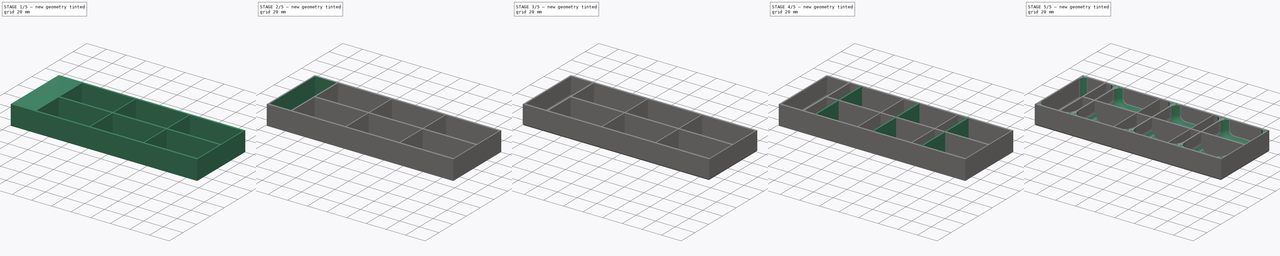
[diagram: build sequence overview — one tinted view per stage of 5, left to right]
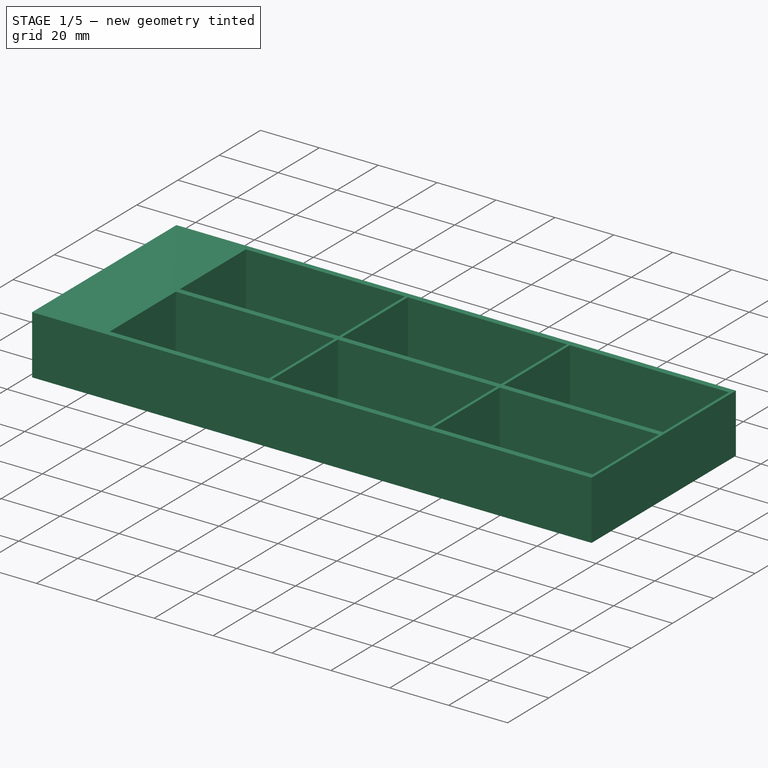
[diagram: stage 1 of 5 — iso view after this stage's code; geometry added in this stage tinted green]
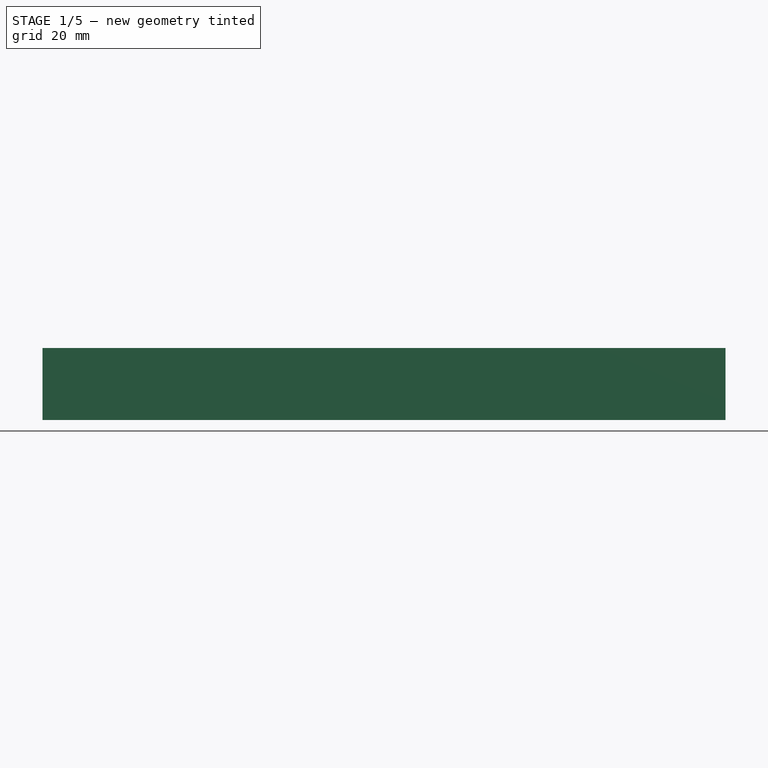
[diagram: stage 1 of 5 — front view after this stage's code; geometry added in this stage tinted green]
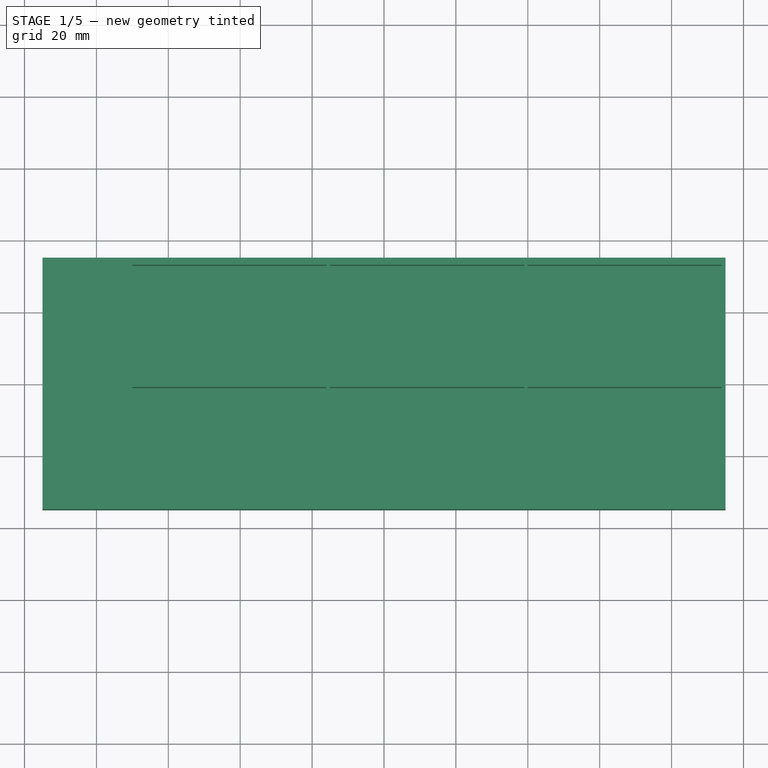
[diagram: stage 1 of 5 — top view after this stage's code; geometry added in this stage tinted green]
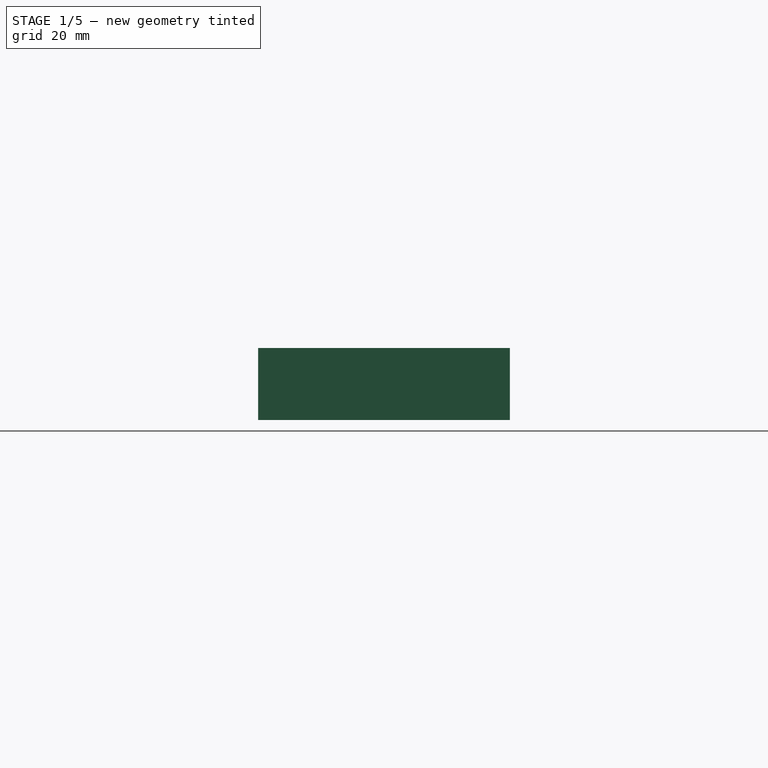
[diagram: stage 1 of 5 — right view after this stage's code; geometry added in this stage tinted green]
FCSTD DOCUMENT  (FreeCAD 0.20R29603 (Git))
Label: GuildMaster
License: All rights reserved
LicenseURL: http://en.wikipedia.org/wiki/All_rights_reserved
objects: Sketcher::SketchObject×6, PartDesign::Fillet×6, PartDesign::Pad×4, PartDesign::Plane×3, PartDesign::Pocket×2, PartDesign::Mirrored×2, PartDesign::LinearPattern×2, PartDesign::MultiTransform×2, PartDesign::Body×2, PartDesign::Thickness×1, App::Part×1
note: 43 computed .brp shape members not serialized (recipe doc carries the construction recipe); baked Part::Feature solids carry a one-line shape summary decoded from their .brp

FEATURE [Sketcher::SketchObject] Sketch005
  FullyConstrained = true
  MapMode = 5
  Support = -> [XY_Plane003]
  sketch-geometry (4):
    g0: LineSegment StartX=-95 StartY=35 StartZ=0 EndX=95 EndY=35 EndZ=0
    g1: LineSegment StartX=95 StartY=35 StartZ=0 EndX=95 EndY=-35 EndZ=0
    g2: LineSegment StartX=95 StartY=-35 StartZ=0 EndX=-95 EndY=-35 EndZ=0
    g3: LineSegment StartX=-95 StartY=-35 StartZ=0 EndX=-95 EndY=35 EndZ=0
  constraints (10):
    c: Coincident(g0,g1)
    c: Coincident(g1,g2)
    c: Coincident(g2,g3)
    c: Coincident(g3,g0)
    c: Horizontal(g2)
    c: Vertical(g1)
    c: DistanceX(g0,g0) = 190
    c: DistanceY(g3,g3) = 70
    c: Symmetric(g0,g0,g-2)
    c: Symmetric(g0,g2,g-1)
FEATURE [PartDesign::Pad] Pad005
  Direction = (0,0,1)
  Length = 20
  Length2 = 10
  Profile = -> Sketch005
  ReferenceAxis = -> Sketch005 [N_Axis]
  Type = 0
FEATURE [PartDesign::Plane] DatumPlane003
  Length = 213.065
  MapMode = 5
  Placement = pos=(0,0,20) rot=(0,0,1;0rad)
  ResizeMode = 0
  Support = -> [Pad005]
  Width = 93.0651
FEATURE [Sketcher::SketchObject] Sketch006
  AttachmentOffset = pos=(67,17,0) rot=(0,0,1;0rad)
  FullyConstrained = true
  MapMode = 5
  Placement = pos=(67,17,20) rot=(0,0,1;0rad)
  Support = -> [DatumPlane003]
  sketch-geometry (4):
    g0: LineSegment StartX=-27 StartY=16 StartZ=0 EndX=27 EndY=16 EndZ=0
    g1: LineSegment StartX=27 StartY=16 StartZ=0 EndX=27 EndY=-16 EndZ=0
    g2: LineSegment StartX=27 StartY=-16 StartZ=0 EndX=-27 EndY=-16 EndZ=0
    g3: LineSegment StartX=-27 StartY=-16 StartZ=0 EndX=-27 EndY=16 EndZ=0
  constraints (10):
    c: Coincident(g0,g1)
    c: Coincident(g1,g2)
    c: Coincident(g2,g3)
    c: Coincident(g3,g0)
    c: Horizontal(g2)
    c: Vertical(g1)
    c: DistanceX(g0,g0) = 54
    c: DistanceY(g3,g3) = 32
    c: Symmetric(g0,g0,g-2)
    c: Symmetric(g0,g2,g-1)
FEATURE [PartDesign::Pocket] Pocket
  BaseFeature = -> Pad005
  Direction = (0,0,-1)
  Length = 18.5
  Length2 = 5
  Profile = -> Sketch006
  ReferenceAxis = -> Sketch006 [N_Axis]
  Type = 0
FEATURE [PartDesign::Mirrored] Mirrored
  MirrorPlane = -> XZ_Plane003
FEATURE [PartDesign::LinearPattern] LinearPattern
  Direction = -> Sketch006 [H_Axis]
  Length = 110
  Occurrences = 3
  Reversed = true
FEATURE [PartDesign::MultiTransform] MultiTransform
  BaseFeature = -> Pocket
  Originals = -> [Pocket]
  Transformations = -> [Mirrored,LinearPattern]
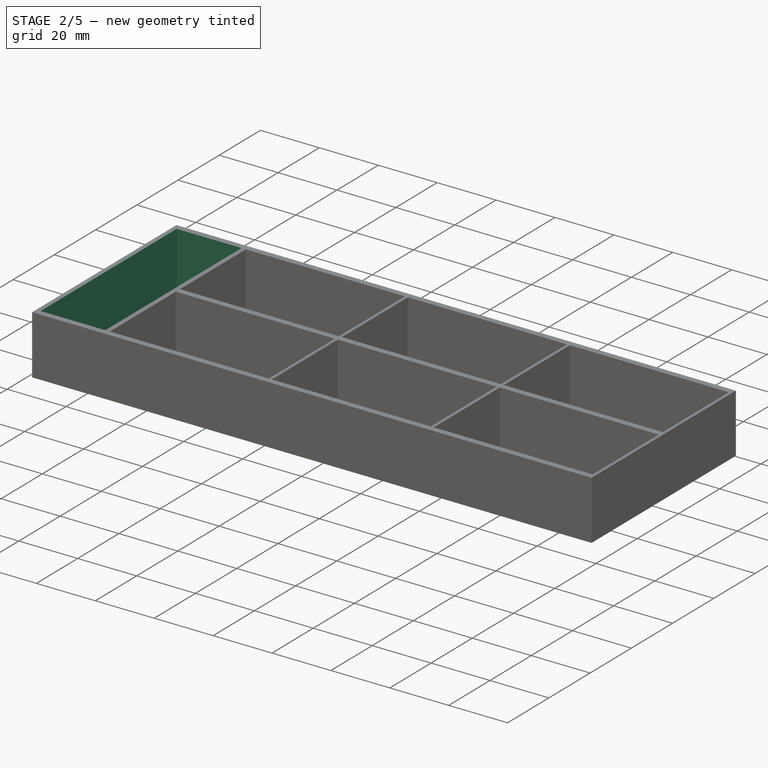
[diagram: stage 2 of 5 — iso view after this stage's code; geometry added in this stage tinted green]
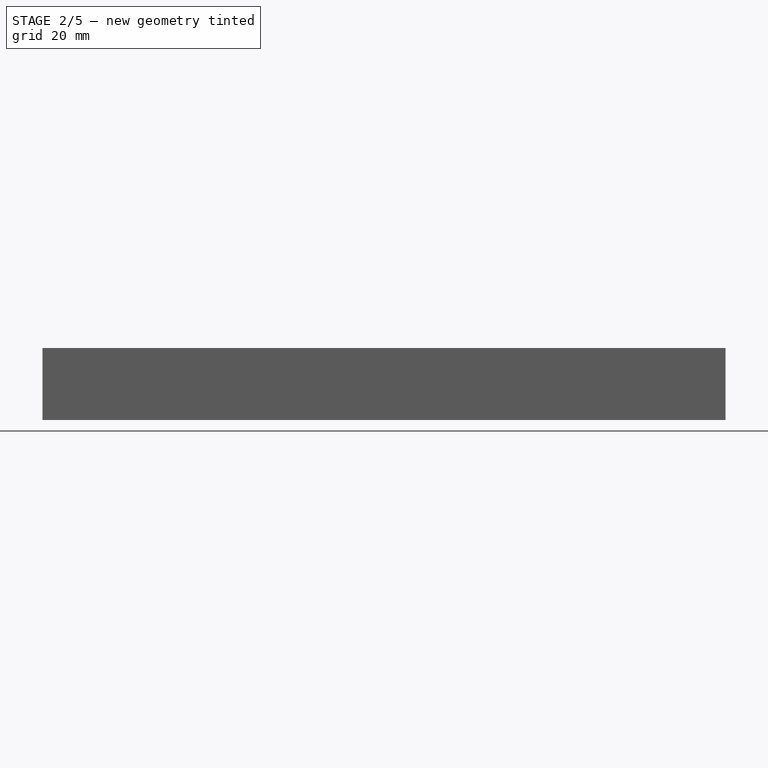
[diagram: stage 2 of 5 — front view after this stage's code; geometry added in this stage tinted green]
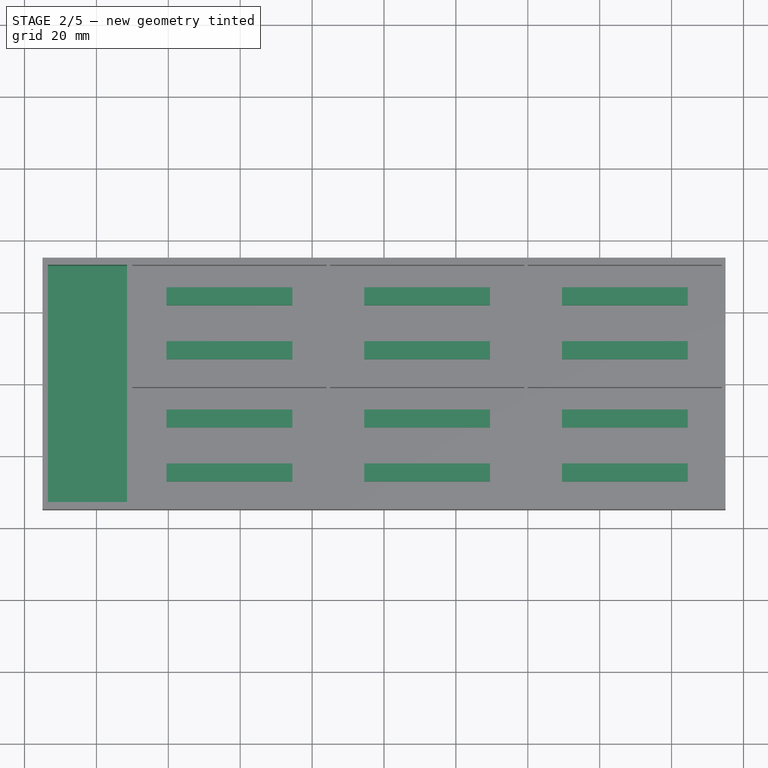
[diagram: stage 2 of 5 — top view after this stage's code; geometry added in this stage tinted green]
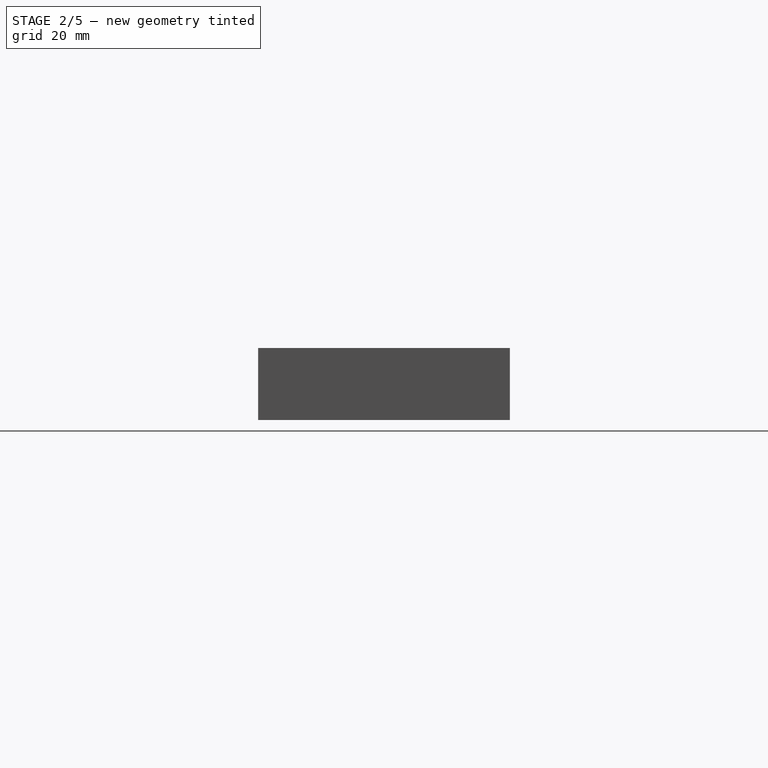
[diagram: stage 2 of 5 — right view after this stage's code; geometry added in this stage tinted green]
FEATURE [Sketcher::SketchObject] Sketch007
  AttachmentOffset = pos=(-82.5,0,0) rot=(0,0,1;0rad)
  FullyConstrained = true
  MapMode = 5
  Placement = pos=(-82.5,0,20) rot=(0,0,1;0rad)
  Support = -> [DatumPlane003]
  sketch-geometry (4):
    g0: LineSegment StartX=-11 StartY=33 StartZ=0 EndX=11 EndY=33 EndZ=0
    g1: LineSegment StartX=11 StartY=33 StartZ=0 EndX=11 EndY=-33 EndZ=0
    g2: LineSegment StartX=11 StartY=-33 StartZ=0 EndX=-11 EndY=-33 EndZ=0
    g3: LineSegment StartX=-11 StartY=-33 StartZ=0 EndX=-11 EndY=33 EndZ=0
  constraints (10):
    c: Coincident(g0,g1)
    c: Coincident(g1,g2)
    c: Coincident(g2,g3)
    c: Coincident(g3,g0)
    c: Horizontal(g2)
    c: Vertical(g1)
    c: DistanceY(g1,g1) = 66
    c: DistanceX(g0,g0) = 22
    c: Symmetric(g0,g0,g-2)
    c: Symmetric(g0,g2,g-1)
FEATURE [PartDesign::Pocket] Pocket001
  BaseFeature = -> MultiTransform
  Direction = (0,0,-1)
  Length = 18.5
  Length2 = 5
  Profile = -> Sketch007
  ReferenceAxis = -> Sketch007 [N_Axis]
  Type = 0
FEATURE [PartDesign::Plane] DatumPlane004
  Length = 213.065
  MapMode = 5
  Placement = pos=(0,0,0) rot=(1,0,0;3.14159rad)
  ResizeMode = 0
  Support = -> [Pocket001]
  Width = 93.0651
FEATURE [Sketcher::SketchObject] Sketch008
  AttachmentOffset = pos=(67,17,0) rot=(0,0,1;0rad)
  FullyConstrained = true
  MapMode = 5
  Placement = pos=(67,-17,0) rot=(1,0,0;3.14159rad)
  Support = -> [DatumPlane004]
  sketch-geometry (8):
    g0: LineSegment StartX=-17.5 StartY=10 StartZ=0 EndX=17.5 EndY=10 EndZ=0
    g1: LineSegment StartX=17.5 StartY=-10 StartZ=0 EndX=-17.5 EndY=-10 EndZ=0
    g2: LineSegment StartX=-17.5 StartY=5 StartZ=0 EndX=17.5 EndY=5 EndZ=0
    g3: LineSegment StartX=17.5 StartY=-5 StartZ=0 EndX=-17.5 EndY=-5 EndZ=0
    g4: LineSegment StartX=17.5 StartY=10 StartZ=0 EndX=17.5 EndY=5 EndZ=0
    g5: LineSegment StartX=17.5 StartY=-5 StartZ=0 EndX=17.5 EndY=-10 EndZ=0
    g6: LineSegment StartX=-17.5 StartY=-10 StartZ=0 EndX=-17.5 EndY=-5 EndZ=0
    g7: LineSegment StartX=-17.5 StartY=5 StartZ=0 EndX=-17.5 EndY=10 EndZ=0
  constraints (20):
    c: Coincident(g0,g4)
    c: Coincident(g5,g1)
    c: Coincident(g1,g6)
    c: Coincident(g7,g0)
    c: Horizontal(g1)
    c: DistanceX(g0,g0) = 35
    c: DistanceY(g6,g7) = 20
    c: Symmetric(g0,g0,g-2)
    c: Symmetric(g0,g1,g-1)
    c: Horizontal(g3)
    c: Symmetric(g2,g2,g-2)
    c: Symmetric(g2,g3,g-1)
    c: DistanceY(g3,g2) = 10
    c: Vertical(g4)
    c: Vertical(g5)
    c: Coincident(g2,g7)
    c: Coincident(g2,g4)
    c: Coincident(g3,g5)
    c: Equal(g2,g3)
    c: Coincident(g6,g3)
FEATURE [PartDesign::Pad] Pad006
  BaseFeature = -> Pocket001
  Direction = (0,0,-1)
  Length = 5
  Length2 = 10
  Profile = -> Sketch008
  ReferenceAxis = -> Sketch008 [N_Axis]
  Reversed = true
  Type = 0
FEATURE [PartDesign::Mirrored] Mirrored001
  MirrorPlane = -> XZ_Plane003
FEATURE [PartDesign::LinearPattern] LinearPattern002
  Direction = -> Sketch008 [H_Axis]
  Length = 110
  Occurrences = 3
  Reversed = true
FEATURE [PartDesign::MultiTransform] MultiTransform001
  BaseFeature = -> Pad006
  Originals = -> [Pad006]
  Transformations = -> [Mirrored001,LinearPattern002]
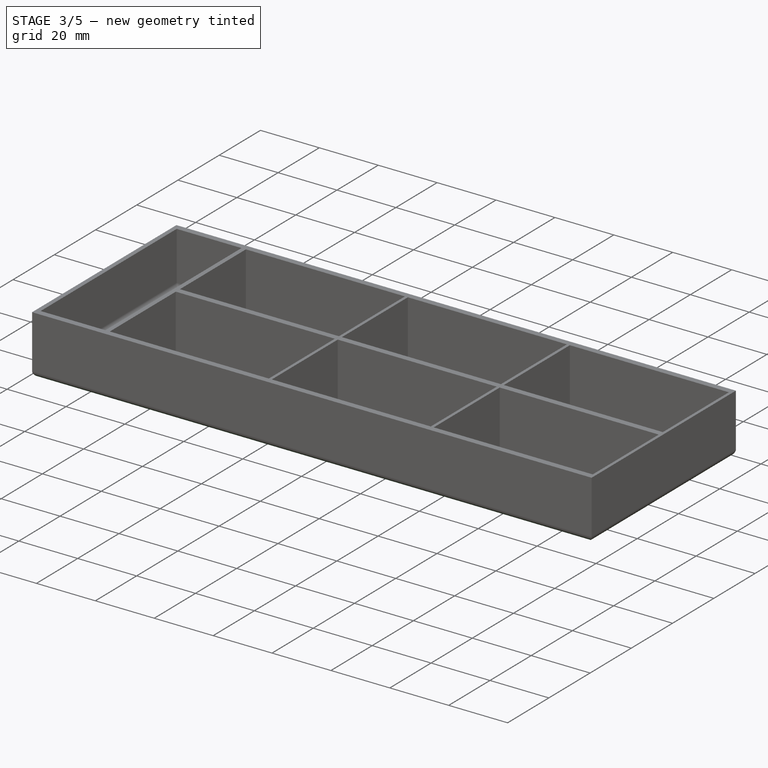
[diagram: stage 3 of 5 — iso view after this stage's code; geometry added in this stage tinted green]
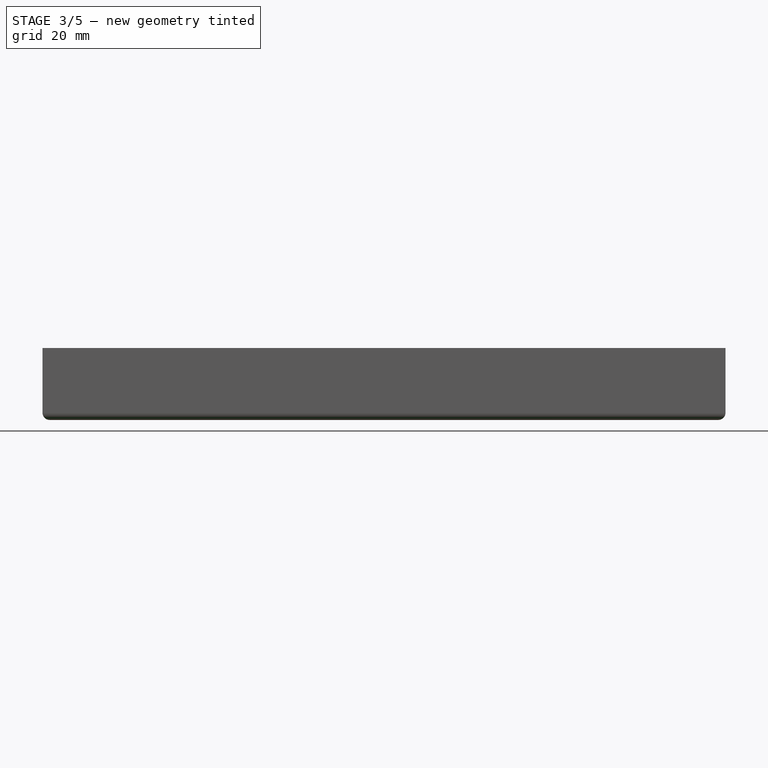
[diagram: stage 3 of 5 — front view after this stage's code; geometry added in this stage tinted green]
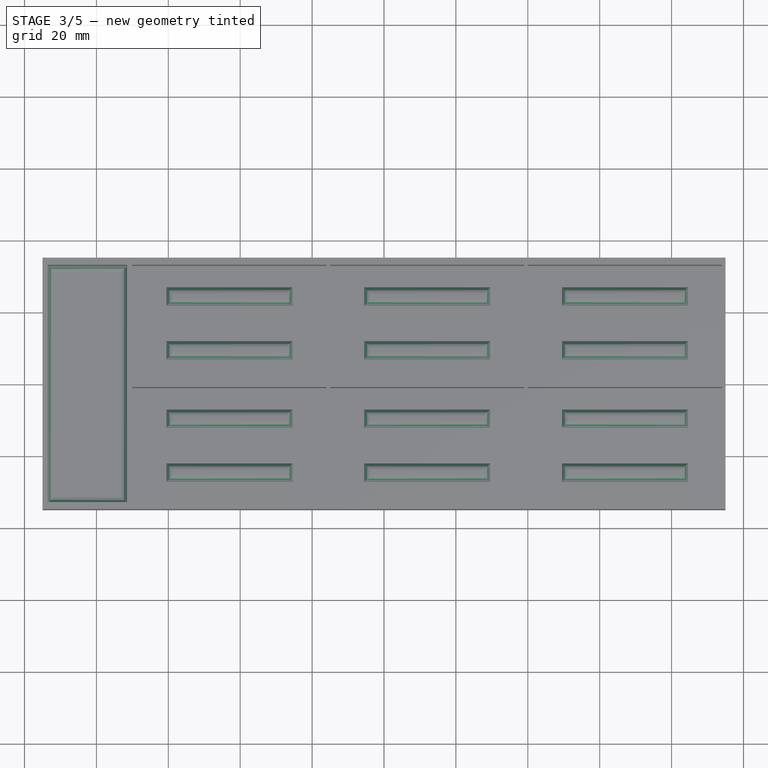
[diagram: stage 3 of 5 — top view after this stage's code; geometry added in this stage tinted green]
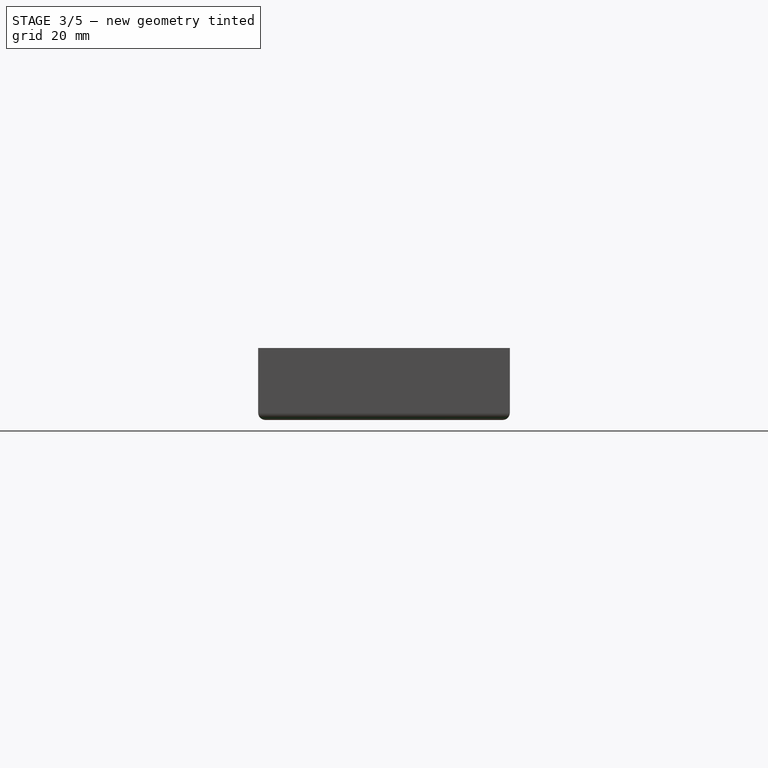
[diagram: stage 3 of 5 — right view after this stage's code; geometry added in this stage tinted green]
FEATURE [PartDesign::Fillet] Fillet006
  Base = -> MultiTransform001 [Face109,Face108,Face102,Face103,Face111,Face110,Face104,Face105,Face113,Face112,Face106,Face107]
  BaseFeature = -> MultiTransform001
  Radius = 2
  SupportTransform = false
  UseAllEdges = false
FEATURE [PartDesign::Fillet] Fillet007
  Base = -> Fillet006 [Face56]
  BaseFeature = -> Fillet006
  Radius = 2
  SupportTransform = false
  UseAllEdges = false
FEATURE [PartDesign::Body] Body  label="Coins"
  Group = -> [Sketch,Pad,Thickness,DatumPlane,Sketch001,Pad001,Fillet,Fillet008,Fillet009]
  Origin = -> Origin001
  Placement = pos=(0,71,0) rot=(0,0,1;0rad)
  Tip = -> Fillet009
FEATURE [PartDesign::Fillet] Fillet010
  Base = -> Fillet007 [Face39]
  BaseFeature = -> Fillet007
  Radius = 2
  SupportTransform = false
  UseAllEdges = false
FEATURE [PartDesign::Body] Body002  label="Skills"
  Group = -> [Sketch005,Pad005,DatumPlane003,Sketch006,Pocket,MultiTransform,Mirrored,LinearPattern,Sketch007,Pocket001,Sketch008,DatumPlane004,Pad006,MultiTransform001,Mirrored001,LinearPattern002,Fillet006,Fillet007,Fillet010]
  Origin = -> Origin003
  Tip = -> Fillet010
FEATURE [App::Part] Part  label="Trays"
  Group = -> [Body,Body002]
  Origin = -> Origin
  Placement = pos=(0,-23,0) rot=(0,0,1;0rad)
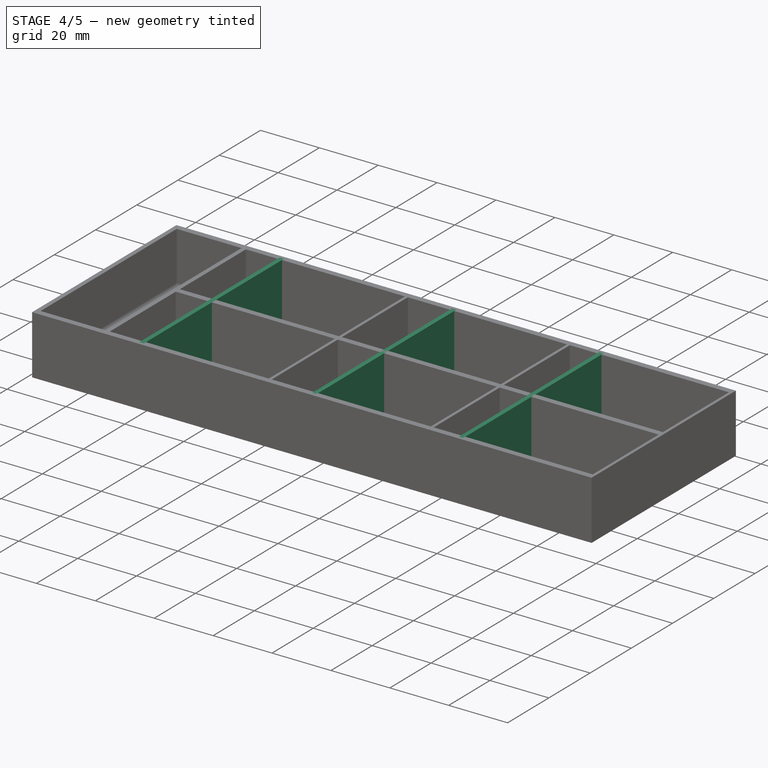
[diagram: stage 4 of 5 — iso view after this stage's code; geometry added in this stage tinted green]
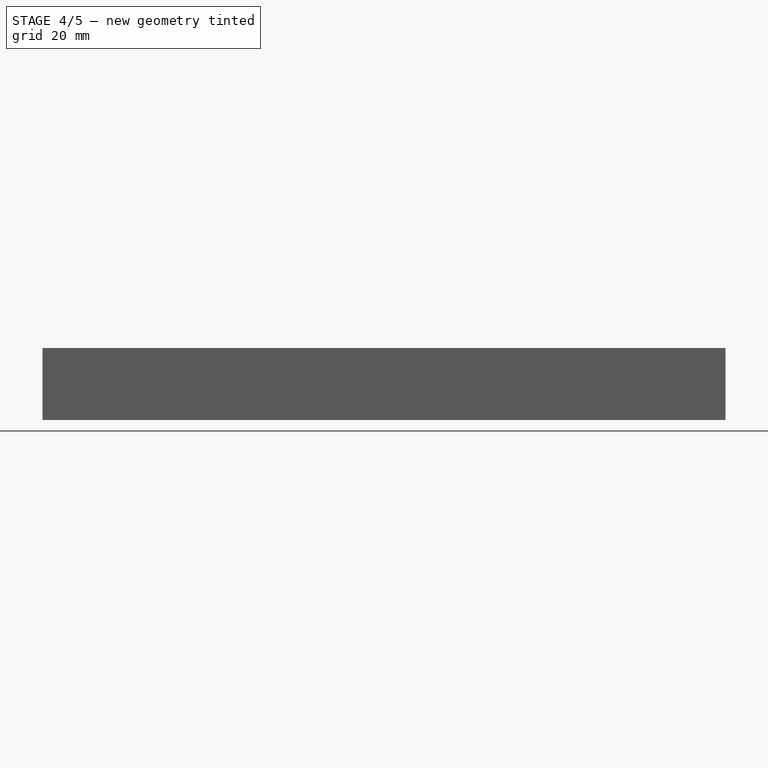
[diagram: stage 4 of 5 — front view after this stage's code; geometry added in this stage tinted green]
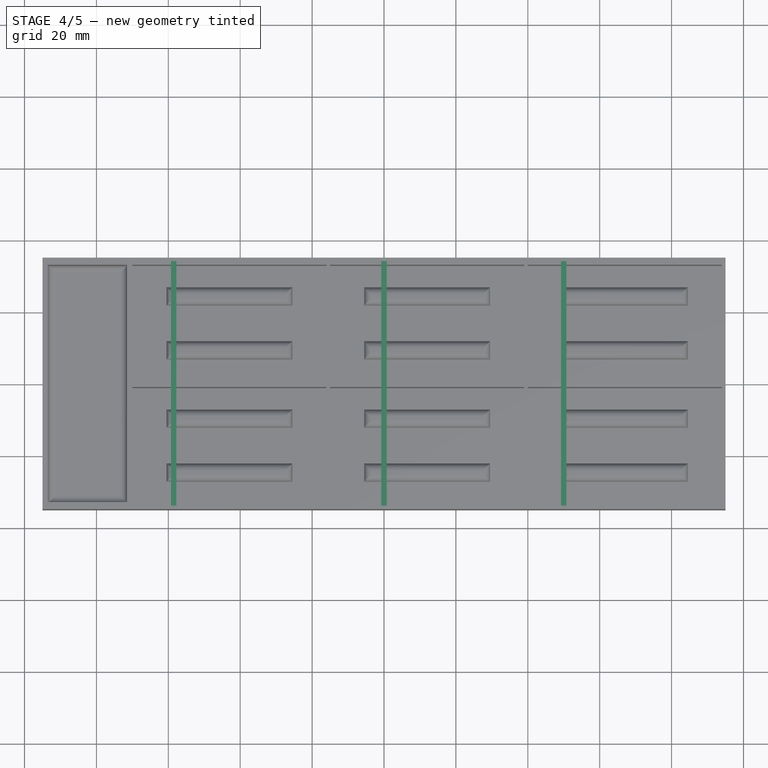
[diagram: stage 4 of 5 — top view after this stage's code; geometry added in this stage tinted green]
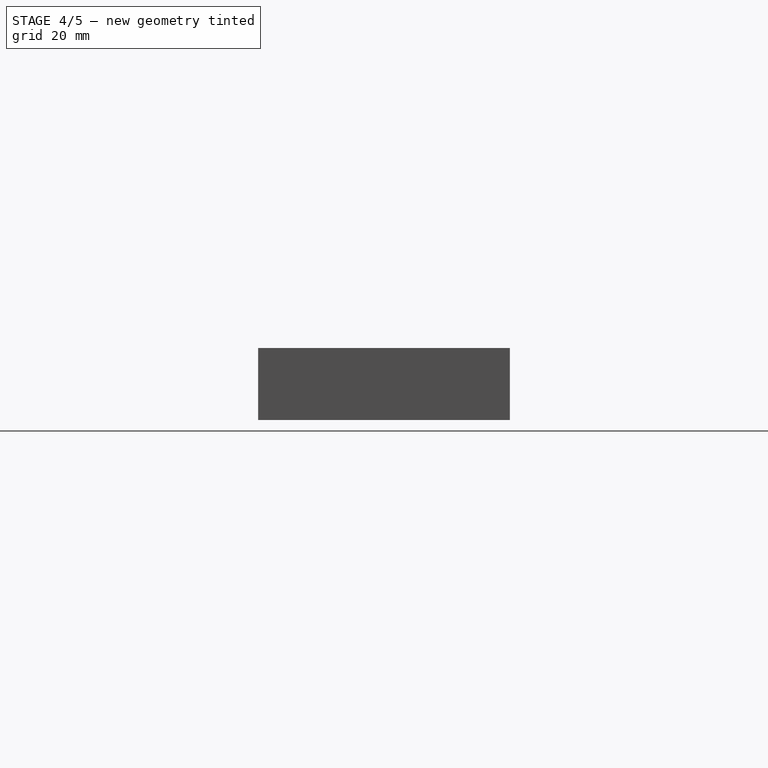
[diagram: stage 4 of 5 — right view after this stage's code; geometry added in this stage tinted green]
FEATURE [Sketcher::SketchObject] Sketch
  FullyConstrained = true
  MapMode = 5
  Support = -> [XY_Plane001]
  sketch-geometry (4):
    g0: LineSegment StartX=-95 StartY=35 StartZ=0 EndX=95 EndY=35 EndZ=0
    g1: LineSegment StartX=95 StartY=35 StartZ=0 EndX=95 EndY=-35 EndZ=0
    g2: LineSegment StartX=95 StartY=-35 StartZ=0 EndX=-95 EndY=-35 EndZ=0
    g3: LineSegment StartX=-95 StartY=-35 StartZ=0 EndX=-95 EndY=35 EndZ=0
  constraints (10):
    c: Coincident(g0,g1)
    c: Coincident(g1,g2)
    c: Coincident(g2,g3)
    c: Coincident(g3,g0)
    c: Horizontal(g2)
    c: Vertical(g1)
    c: DistanceX(g0,g0) = 190
    c: DistanceY(g3,g3) = 70
    c: Symmetric(g0,g0,g-2)
    c: Symmetric(g0,g2,g-1)
FEATURE [PartDesign::Pad] Pad
  Direction = (0,0,1)
  Length = 20
  Length2 = 10
  Profile = -> Sketch
  ReferenceAxis = -> Sketch [N_Axis]
  Type = 0
FEATURE [PartDesign::Thickness] Thickness
  Base = -> Pad [Face6]
  BaseFeature = -> Pad
  Intersection = false
  Join = 0
  Mode = 0
  Reversed = true
  SupportTransform = false
  Value = 1
FEATURE [PartDesign::Plane] DatumPlane
  Length = 209.494
  MapMode = 5
  Placement = pos=(0,34,0) rot=(1,0,0;1.5708rad)
  ResizeMode = 0
  Support = -> [Thickness]
  Width = 69.4936
FEATURE [Sketcher::SketchObject] Sketch001
  FullyConstrained = true
  MapMode = 5
  Placement = pos=(0,34,0) rot=(1,0,0;1.5708rad)
  Support = -> [DatumPlane]
  sketch-geometry (12):
    g0: LineSegment StartX=-0.75 StartY=0 StartZ=0 EndX=0.75 EndY=0 EndZ=0
    g1: LineSegment StartX=0.75 StartY=0 StartZ=0 EndX=0.75 EndY=20 EndZ=0
    g2: LineSegment StartX=0.75 StartY=20 StartZ=0 EndX=-0.75 EndY=20 EndZ=0
    g3: LineSegment StartX=-0.75 StartY=20 StartZ=0 EndX=-0.75 EndY=0 EndZ=0
    g4: LineSegment StartX=-57.75 StartY=0 StartZ=0 EndX=-59.25 EndY=0 EndZ=0
    g5: LineSegment StartX=-59.25 StartY=0 StartZ=0 EndX=-59.25 EndY=20 EndZ=0
    g6: LineSegment StartX=-59.25 StartY=20 StartZ=0 EndX=-57.75 EndY=20 EndZ=0
    g7: LineSegment StartX=-57.75 StartY=20 StartZ=0 EndX=-57.75 EndY=0 EndZ=0
    g8: LineSegment StartX=49.25 StartY=0 StartZ=0 EndX=50.75 EndY=0 EndZ=0
    g9: LineSegment StartX=50.75 StartY=0 StartZ=0 EndX=50.75 EndY=20 EndZ=0
    g10: LineSegment StartX=50.75 StartY=20 StartZ=0 EndX=49.25 EndY=20 EndZ=0
    g11: LineSegment StartX=49.25 StartY=20 StartZ=0 EndX=49.25 EndY=0 EndZ=0
  constraints (35):
    c: Coincident(g0,g1)
    c: Coincident(g1,g2)
    c: Coincident(g2,g3)
    c: Coincident(g3,g0)
    c: Horizontal(g0)
    c: Vertical(g1)
    c: Vertical(g3)
    c: PointOnObject(g0,g-1)
    c: DistanceX(g2,g2) = 1.5
    c: Symmetric(g2,g1,g-2)
    c: DistanceY(g3,g3) = 20
    c: Coincident(g4,g5)
    c: Coincident(g5,g6)
    c: Coincident(g6,g7)
    c: Coincident(g7,g4)
    c: Horizontal(g4)
    c: Horizontal(g6)
    c: Vertical(g5)
    c: Vertical(g7)
    c: PointOnObject(g4,g-1)
    c: Coincident(g8,g9)
    c: Coincident(g9,g10)
    c: Coincident(g10,g11)
    c: Coincident(g11,g8)
    c: Horizontal(g8)
    c: Horizontal(g10)
    c: Vertical(g9)
    c: Vertical(g11)
    c: PointOnObject(g8,g-1)
    c: Equal(g7,g3)
    c: Equal(g3,g11)
    c: Equal(g6,g2)
    c: Equal(g2,g10)
    c: DistanceX(g5,g2) = 58.5
    c: DistanceX(g1,g10) = 48.5
FEATURE [PartDesign::Pad] Pad001
  BaseFeature = -> Thickness
  Direction = (0,-1,2e-16)
  Length = 10
  Length2 = 10
  Profile = -> Sketch001
  ReferenceAxis = -> Sketch001 [N_Axis]
  Type = 3
  UpToFace = -> Thickness [Face9]
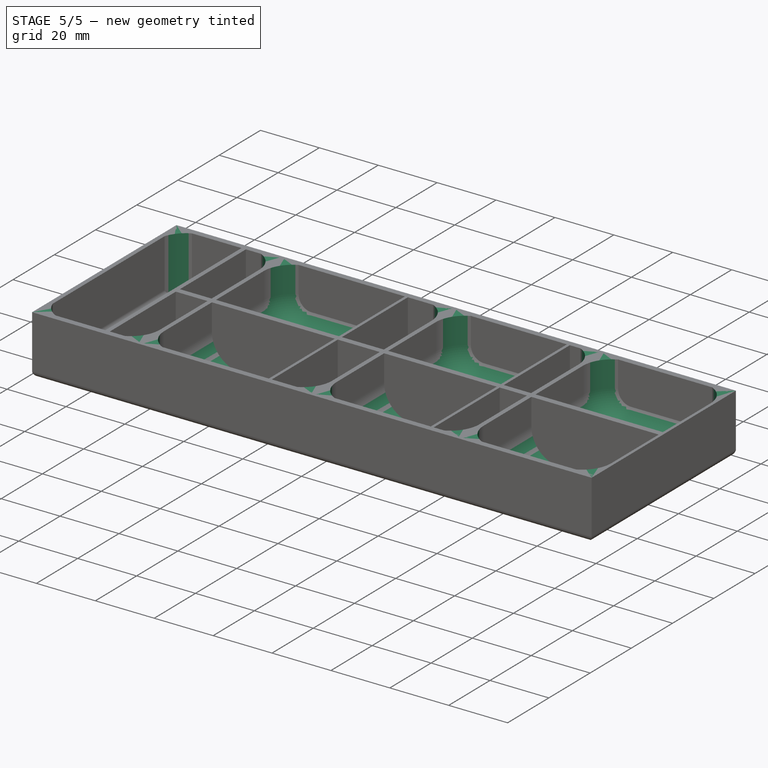
[diagram: stage 5 of 5 — iso view after this stage's code; geometry added in this stage tinted green]
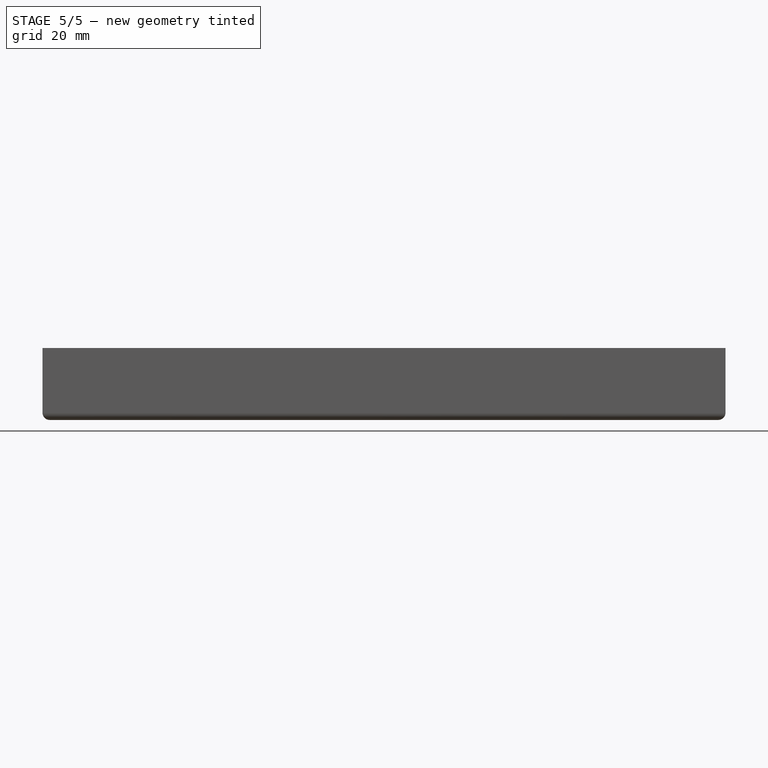
[diagram: stage 5 of 5 — front view after this stage's code; geometry added in this stage tinted green]
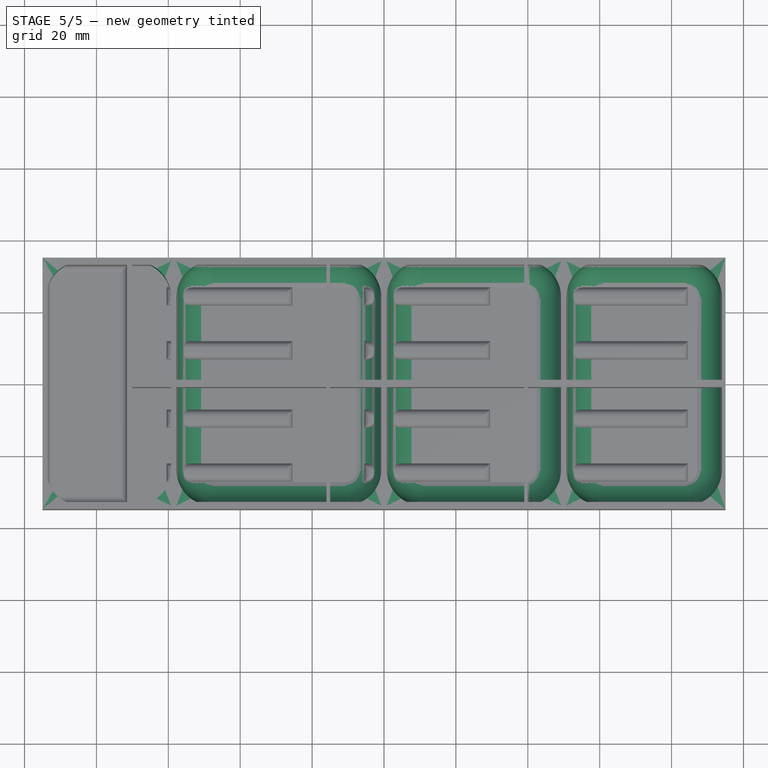
[diagram: stage 5 of 5 — top view after this stage's code; geometry added in this stage tinted green]
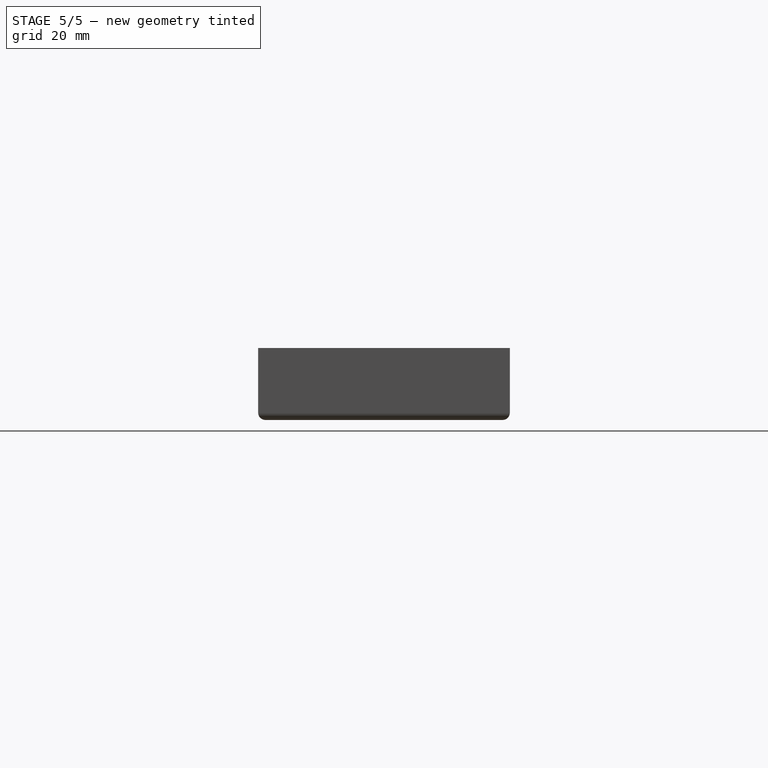
[diagram: stage 5 of 5 — right view after this stage's code; geometry added in this stage tinted green]
FEATURE [PartDesign::Fillet] Fillet
  Base = -> Pad001 [Edge63,Edge65,Edge68,Edge71,Edge66,Edge69,Edge41,Edge46,Edge51,Edge48,Edge53,Edge43,Edge62,Edge56,Edge58,Edge59]
  BaseFeature = -> Pad001
  Radius = 10
  SupportTransform = false
  UseAllEdges = false
FEATURE [PartDesign::Fillet] Fillet008
  Base = -> Fillet [Face37,Face30,Face23]
  BaseFeature = -> Fillet
  Radius = 10
  SupportTransform = false
  UseAllEdges = false
FEATURE [PartDesign::Fillet] Fillet009
  Base = -> Fillet008 [Face54]
  BaseFeature = -> Fillet008
  Radius = 2
  SupportTransform = false
  UseAllEdges = false
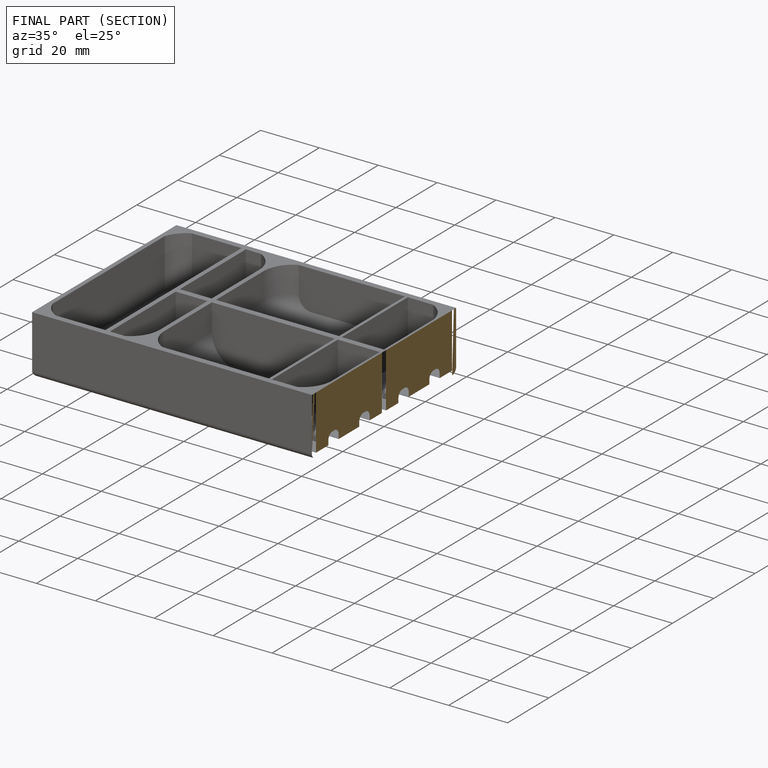
[diagram: finished part — half-section view (interior)]
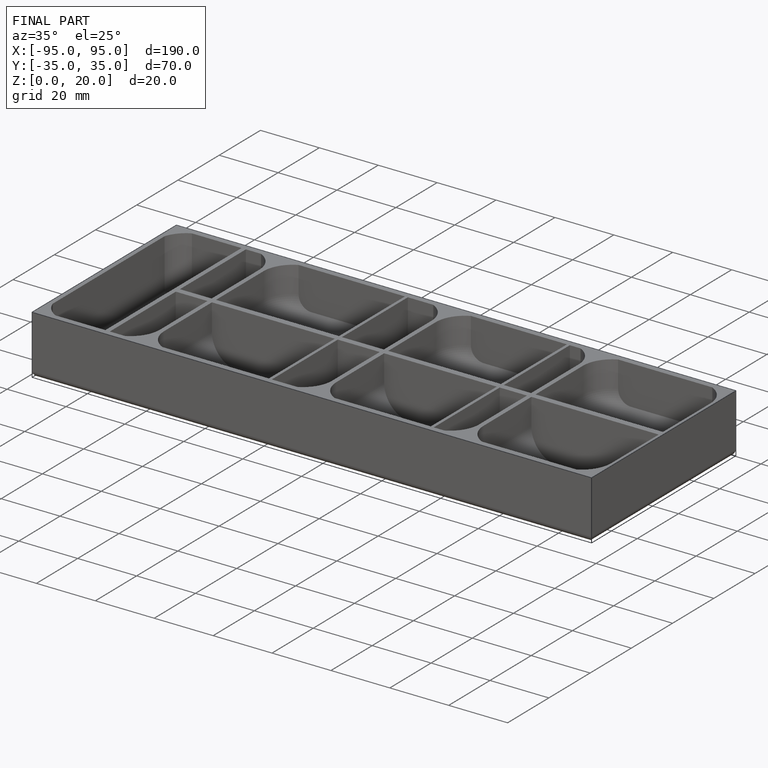
[diagram: finished part — iso view with bounding-box wireframe]
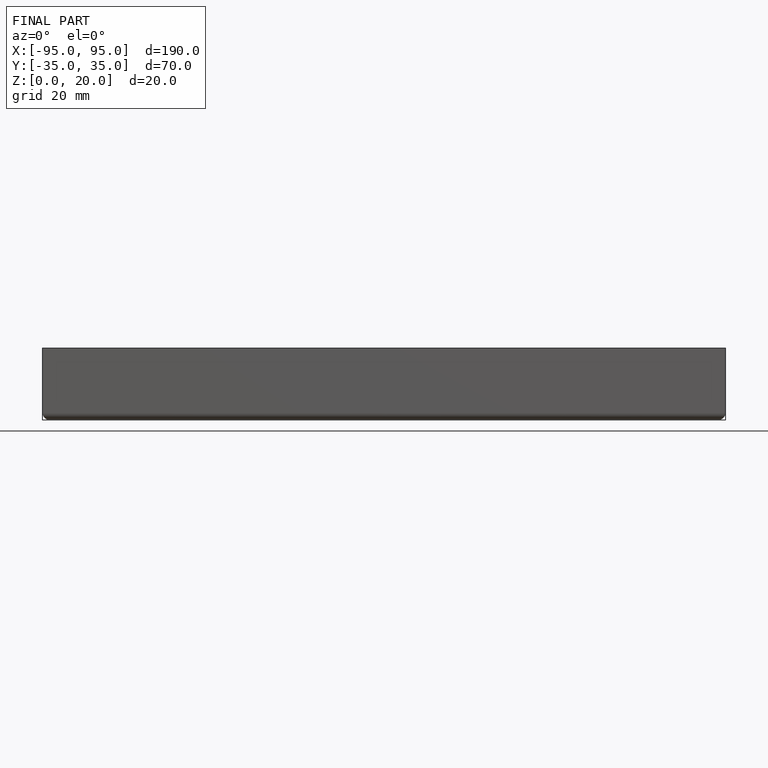
[diagram: finished part — front view with bounding-box wireframe]
